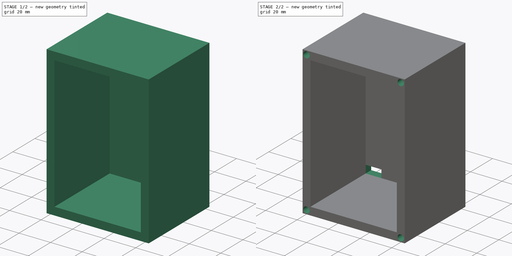
[diagram: build sequence overview — one tinted view per stage of 2, left to right]
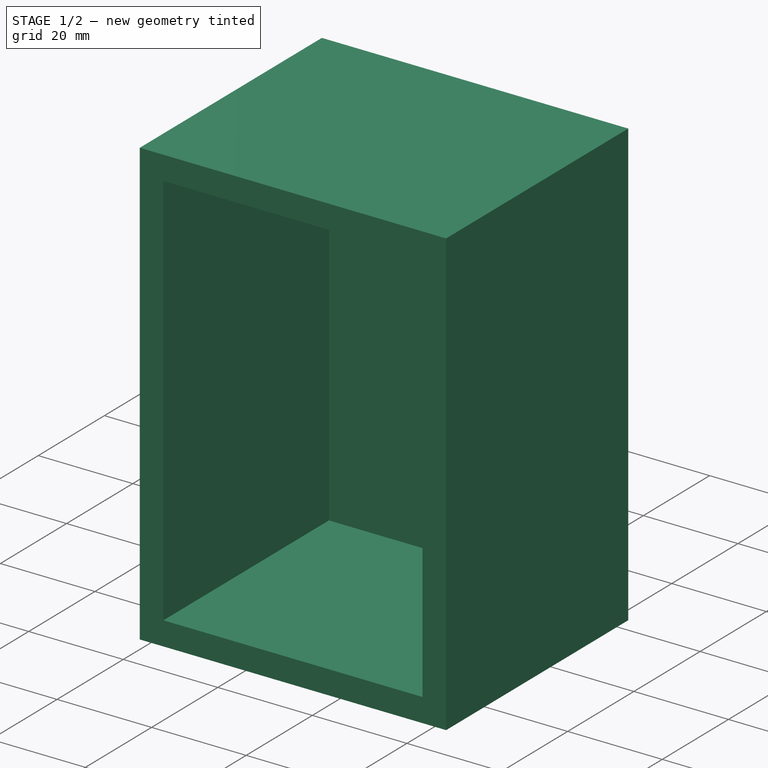
[diagram: stage 1 of 2 — iso view after this stage's code; geometry added in this stage tinted green]
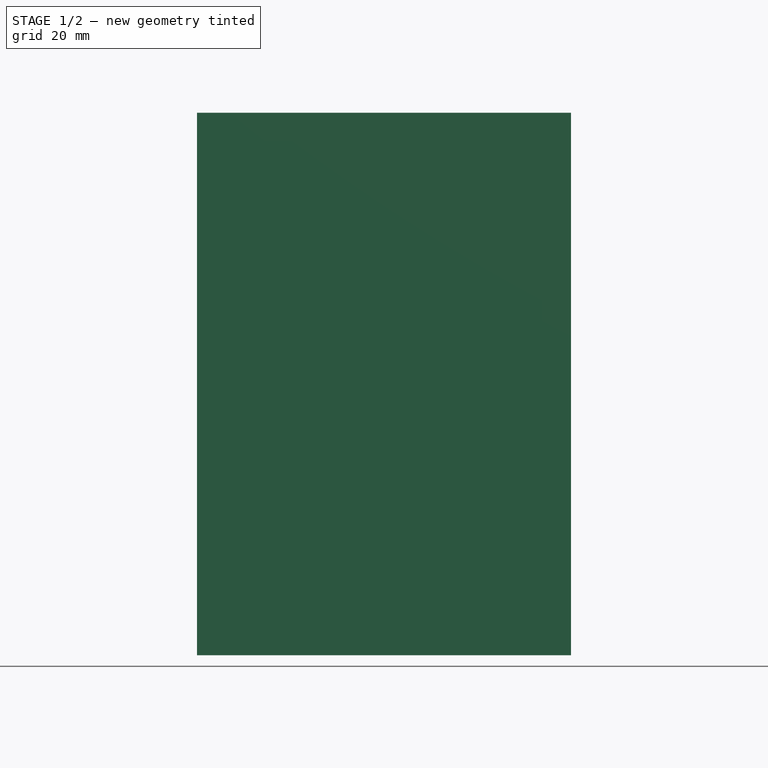
[diagram: stage 1 of 2 — front view after this stage's code; geometry added in this stage tinted green]
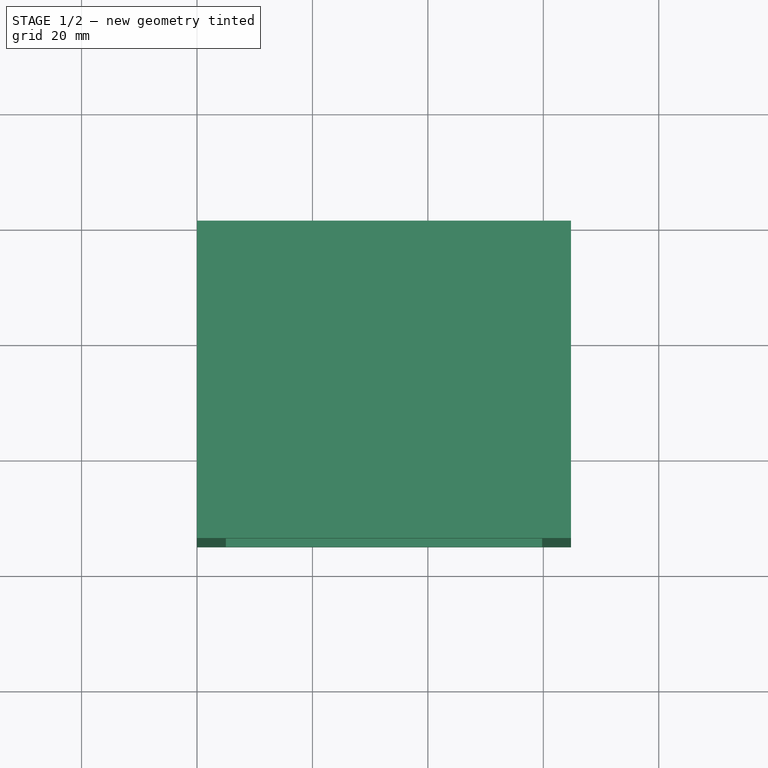
[diagram: stage 1 of 2 — top view after this stage's code; geometry added in this stage tinted green]
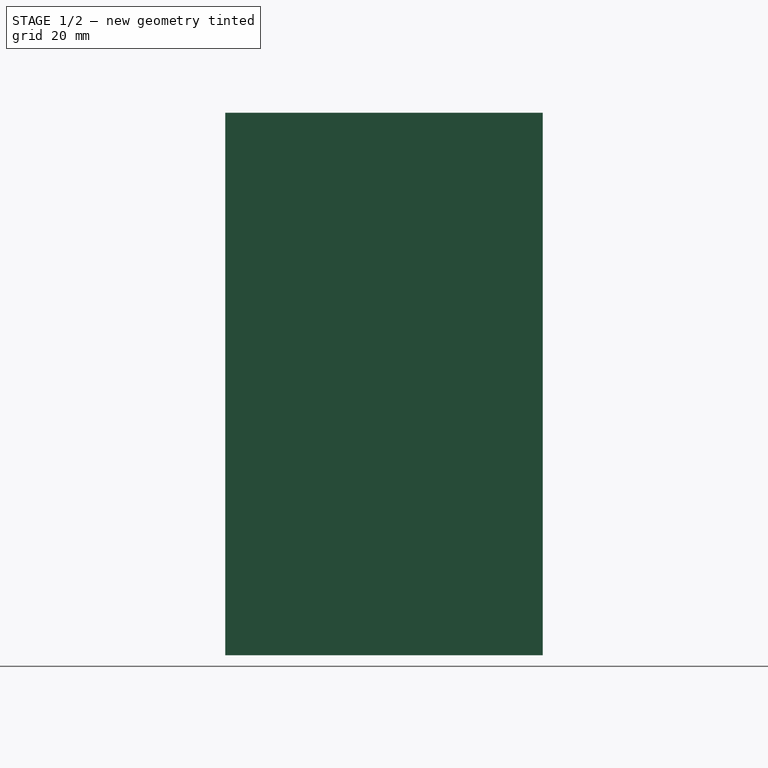
[diagram: stage 1 of 2 — right view after this stage's code; geometry added in this stage tinted green]
FCSTD DOCUMENT  (FreeCAD 0.20R29603 (Git))
Label: body
License: All rights reserved
LicenseURL: http://en.wikipedia.org/wiki/All_rights_reserved
objects: Sketcher::SketchObject×4, PartDesign::Pocket×3, PartDesign::Pad×1, PartDesign::Body×1
note: 13 computed .brp shape members not serialized (recipe doc carries the construction recipe); baked Part::Feature solids carry a one-line shape summary decoded from their .brp

FEATURE [Sketcher::SketchObject] Sketch
  FullyConstrained = true
  MapMode = 5
  Placement = pos=(0,0,0) rot=(1,0,0;1.5708rad)
  Support = -> [XZ_Plane]
  sketch-geometry (4):
    g0: LineSegment StartX=0 StartY=0 StartZ=0 EndX=64.8 EndY=0 EndZ=0
    g1: LineSegment StartX=64.8 StartY=0 StartZ=0 EndX=64.8 EndY=94 EndZ=0
    g2: LineSegment StartX=64.8 StartY=94 StartZ=0 EndX=0 EndY=94 EndZ=0
    g3: LineSegment StartX=0 StartY=94 StartZ=0 EndX=0 EndY=0 EndZ=0
  constraints (11):
    c: Coincident(g0,g1)
    c: Coincident(g1,g2)
    c: Coincident(g2,g3)
    c: Coincident(g3,g0)
    c: Horizontal(g0)
    c: Horizontal(g2)
    c: Vertical(g1)
    c: Vertical(g3)
    c: Coincident(g0,g-1)
    c: DistanceX(g2,g2) = 64.8
    c: DistanceY(g3,g3) = 94
FEATURE [PartDesign::Pad] Pad
  Direction = (0,-1,2e-16)
  Length = 55
  Length2 = 10
  Placement = pos=(0,0,0) rot=(1,0,0;1.5708rad)
  Profile = -> Sketch
  ReferenceAxis = -> Sketch [N_Axis]
  Type = 0
FEATURE [Sketcher::SketchObject] Sketch001
  ExternalGeometry = -> [Pad]
  FullyConstrained = true
  MapMode = 5
  Placement = pos=(0,-55,1.22e-14) rot=(1,0,0;1.5708rad)
  Support = -> [Pad]
  sketch-geometry (4):
    g0: LineSegment StartX=5 StartY=5 StartZ=0 EndX=59.8 EndY=5 EndZ=0
    g1: LineSegment StartX=59.8 StartY=5 StartZ=0 EndX=59.8 EndY=89 EndZ=0
    g2: LineSegment StartX=59.8 StartY=89 StartZ=0 EndX=5 EndY=89 EndZ=0
    g3: LineSegment StartX=5 StartY=89 StartZ=0 EndX=5 EndY=5 EndZ=0
  constraints (12):
    c: Coincident(g0,g1)
    c: Coincident(g1,g2)
    c: Coincident(g2,g3)
    c: Coincident(g3,g0)
    c: Horizontal(g0)
    c: Horizontal(g2)
    c: Vertical(g1)
    c: Vertical(g3)
    c: DistanceX(g-5,g2) = 5
    c: DistanceX(g1,g-4) = 5
    c: DistanceY(g2,g-5) = 5
    c: DistanceY(g-6,g0) = 5
FEATURE [PartDesign::Pocket] Pocket
  BaseFeature = -> Pad
  Direction = (0,1,-2e-16)
  Length = 50
  Length2 = 5
  Placement = pos=(0,0,0) rot=(1,0,0;1.5708rad)
  Profile = -> Sketch001
  ReferenceAxis = -> Sketch001 [N_Axis]
  Type = 0
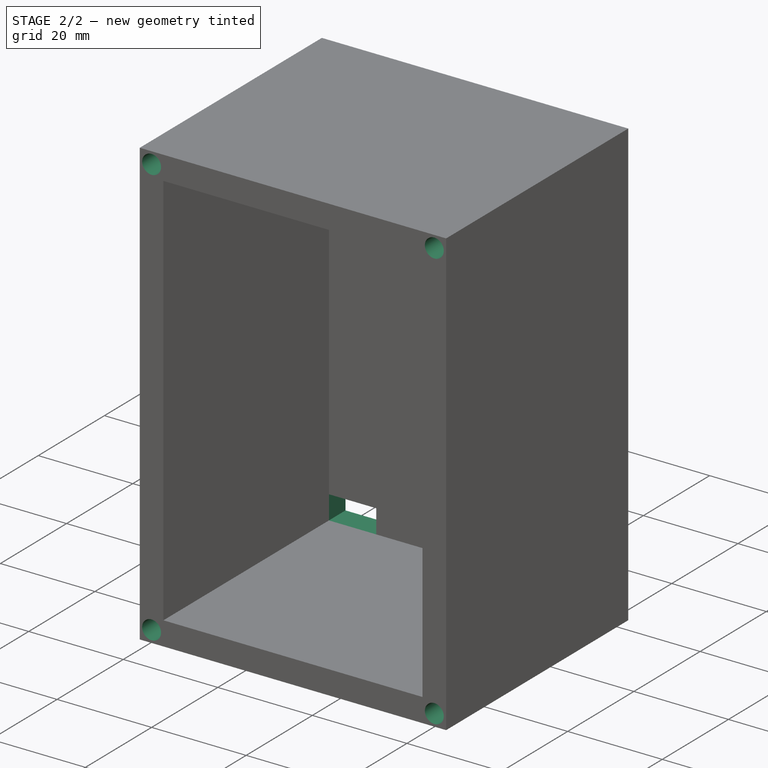
[diagram: stage 2 of 2 — iso view after this stage's code; geometry added in this stage tinted green]
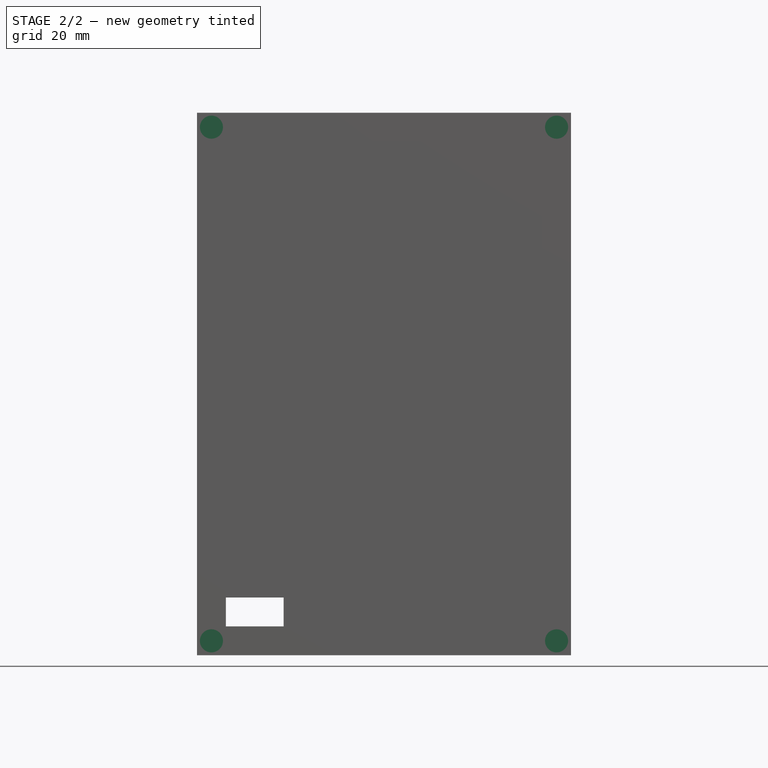
[diagram: stage 2 of 2 — front view after this stage's code; geometry added in this stage tinted green]
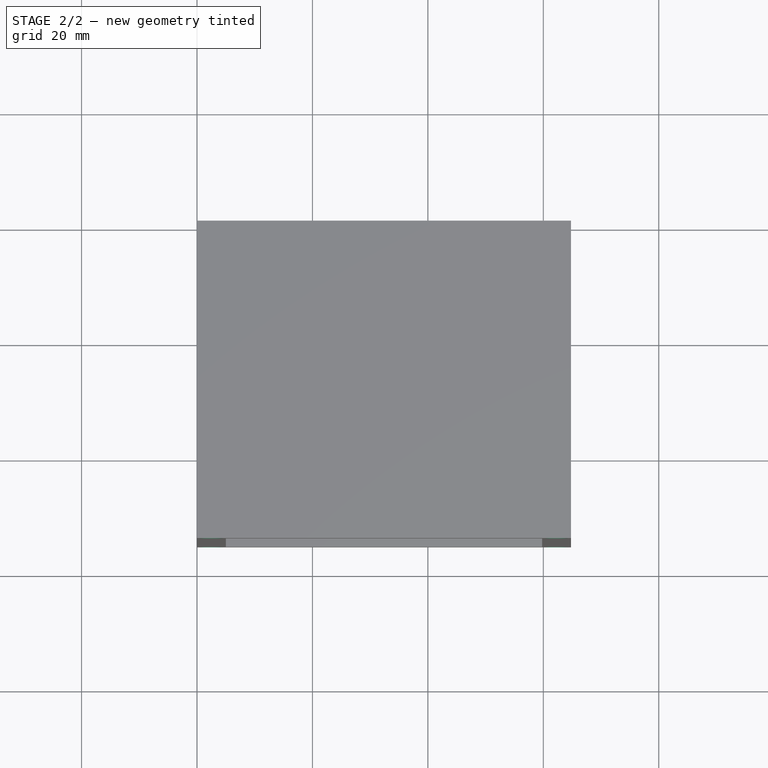
[diagram: stage 2 of 2 — top view after this stage's code; geometry added in this stage tinted green]
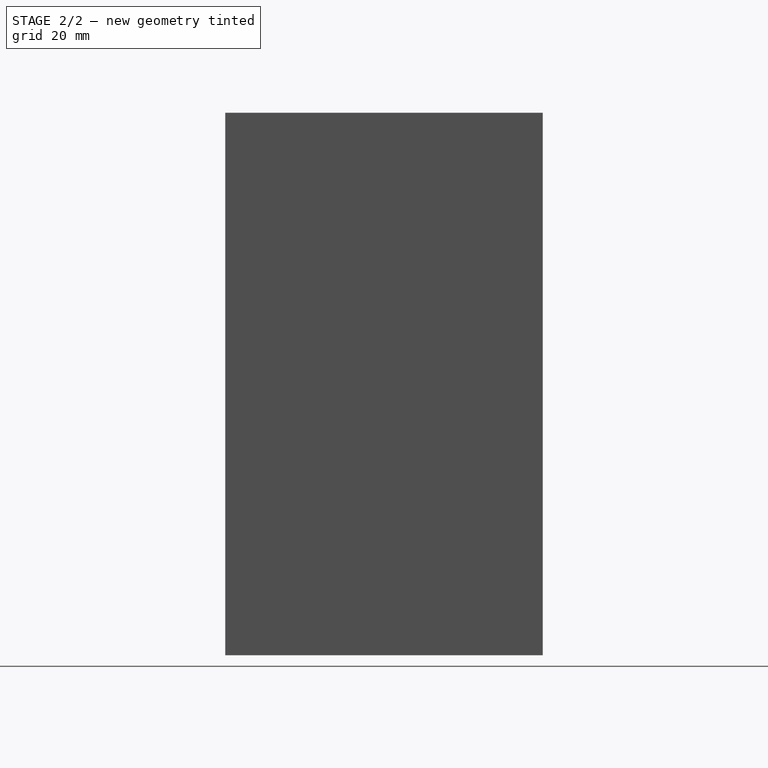
[diagram: stage 2 of 2 — right view after this stage's code; geometry added in this stage tinted green]
FEATURE [Sketcher::SketchObject] Sketch002
  ExternalGeometry = -> [Pocket]
  FullyConstrained = true
  MapMode = 5
  Placement = pos=(0,-55,1.22e-14) rot=(1,0,0;1.5708rad)
  Support = -> [Pocket]
  sketch-geometry (12):
    g0: Circle CenterX=2.5 CenterY=2.5 CenterZ=0 NormalX=0 NormalY=0 NormalZ=1 AngleXU=0 Radius=2
    g1: Circle CenterX=62.3 CenterY=2.5 CenterZ=0 NormalX=0 NormalY=0 NormalZ=1 AngleXU=0 Radius=2
    g2: Circle CenterX=62.3 CenterY=91.5 CenterZ=0 NormalX=0 NormalY=0 NormalZ=1 AngleXU=0 Radius=2
    g3: Circle CenterX=2.5 CenterY=91.5 CenterZ=0 NormalX=0 NormalY=0 NormalZ=1 AngleXU=0 Radius=2
    g4: LineSegment StartX=2.5 StartY=91.5 StartZ=0 EndX=0 EndY=94 EndZ=0
    g5: LineSegment StartX=2.5 StartY=91.5 StartZ=0 EndX=5 EndY=89 EndZ=0
    g6: LineSegment StartX=64.8 StartY=94 StartZ=0 EndX=62.3 EndY=91.5 EndZ=0
    g7: LineSegment StartX=62.3 StartY=91.5 StartZ=0 EndX=59.8 EndY=89 EndZ=0
    g8: LineSegment StartX=2.5 StartY=2.5 StartZ=0 EndX=5 EndY=5 EndZ=0
    g9: LineSegment StartX=2.5 StartY=2.5 StartZ=0 EndX=0 EndY=0 EndZ=0
    g10: LineSegment StartX=62.3 StartY=2.5 StartZ=0 EndX=59.8 EndY=5 EndZ=0
    g11: LineSegment StartX=62.3 StartY=2.5 StartZ=0 EndX=64.8 EndY=0 EndZ=0
  constraints (28):
    c: Coincident(g4,g3)
    c: Coincident(g4,g-7)
    c: Coincident(g5,g3)
    c: Coincident(g5,g-8)
    c: Equal(g5,g4)
    c: Parallel(g4,g5)
    c: Coincident(g6,g-10)
    c: Coincident(g6,g2)
    c: Coincident(g7,g2)
    c: Coincident(g7,g-9)
    c: Equal(g6,g7)
    c: Parallel(g6,g7)
    c: Coincident(g8,g0)
    c: Coincident(g8,g-6)
    c: Coincident(g9,g0)
    c: Coincident(g9,g-5)
    c: Equal(g9,g8)
    c: Parallel(g8,g9)
    c: Coincident(g10,g1)
    c: Coincident(g10,g-9)
    c: Coincident(g11,g1)
    c: Coincident(g11,g-10)
    c: Equal(g10,g11)
    c: Parallel(g10,g11)
    c: Equal(g3,g2)
    c: Equal(g2,g1)
    c: Equal(g1,g0)
    c: Diameter(g2) = 4
FEATURE [PartDesign::Pocket] Pocket001
  BaseFeature = -> Pocket
  Direction = (0,1,-2e-16)
  Length = 5
  Length2 = 5
  Placement = pos=(0,0,0) rot=(1,0,0;1.5708rad)
  Profile = -> Sketch002
  ReferenceAxis = -> Sketch002 [N_Axis]
  Type = 0
FEATURE [Sketcher::SketchObject] Sketch003
  ExternalGeometry = -> [Pocket001]
  FullyConstrained = true
  MapMode = 5
  Placement = pos=(0,-5,1.3e-15) rot=(1,0,0;1.5708rad)
  Support = -> [Pocket001]
  sketch-geometry (4):
    g0: LineSegment StartX=5 StartY=5 StartZ=0 EndX=15 EndY=5 EndZ=0
    g1: LineSegment StartX=15 StartY=5 StartZ=0 EndX=15 EndY=10 EndZ=0
    g2: LineSegment StartX=15 StartY=10 StartZ=0 EndX=5 EndY=10 EndZ=0
    g3: LineSegment StartX=5 StartY=10 StartZ=0 EndX=5 EndY=5 EndZ=0
  constraints (11):
    c: Coincident(g0,g1)
    c: Coincident(g1,g2)
    c: Coincident(g2,g3)
    c: Coincident(g3,g0)
    c: Horizontal(g0)
    c: Horizontal(g2)
    c: Vertical(g1)
    c: Vertical(g3)
    c: Coincident(g0,g-4)
    c: DistanceX(g2,g2) = 10
    c: DistanceY(g1,g1) = 5
FEATURE [PartDesign::Pocket] Pocket002
  BaseFeature = -> Pocket001
  Direction = (0,1,-2e-16)
  Length = 5
  Length2 = 5
  Placement = pos=(0,0,0) rot=(1,0,0;1.5708rad)
  Profile = -> Sketch003
  ReferenceAxis = -> Sketch003 [N_Axis]
  Type = 1
FEATURE [PartDesign::Body] Body
  Group = -> [Sketch,Pad,Sketch001,Pocket,Sketch002,Pocket001,Sketch003,Pocket002]
  Origin = -> Origin
  Tip = -> Pocket002
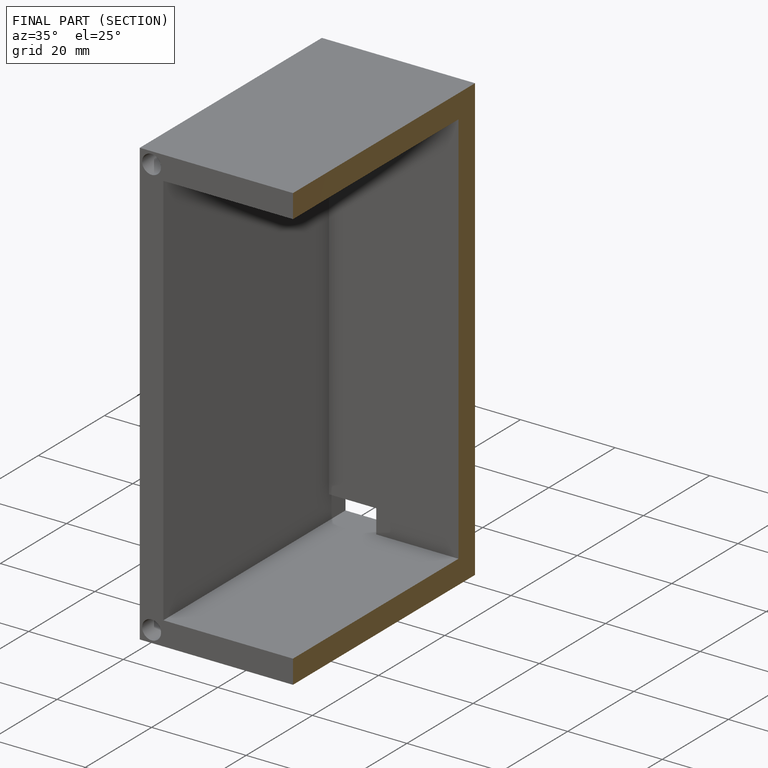
[diagram: finished part — half-section view (interior)]
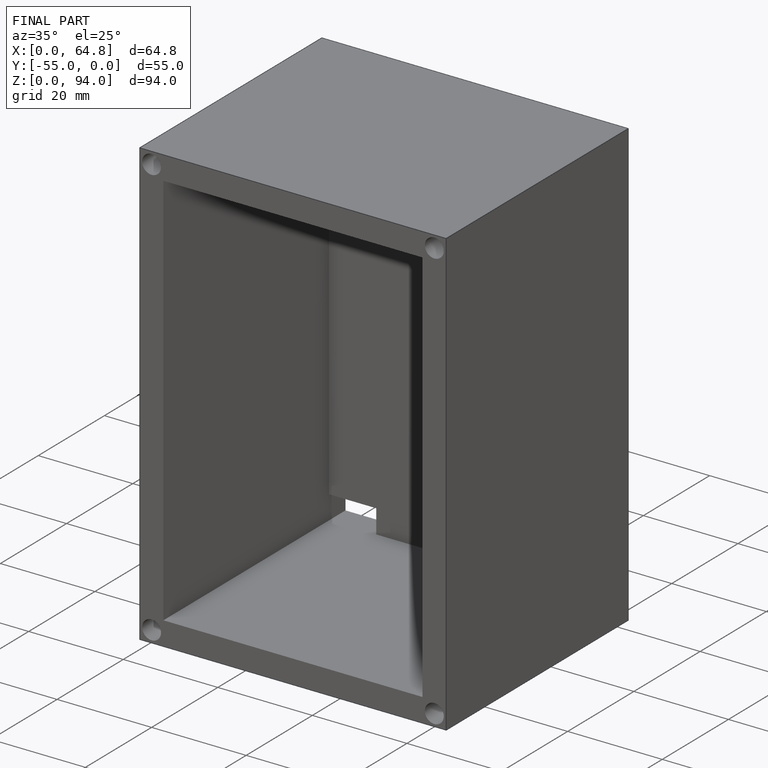
[diagram: finished part — iso view with bounding-box wireframe]
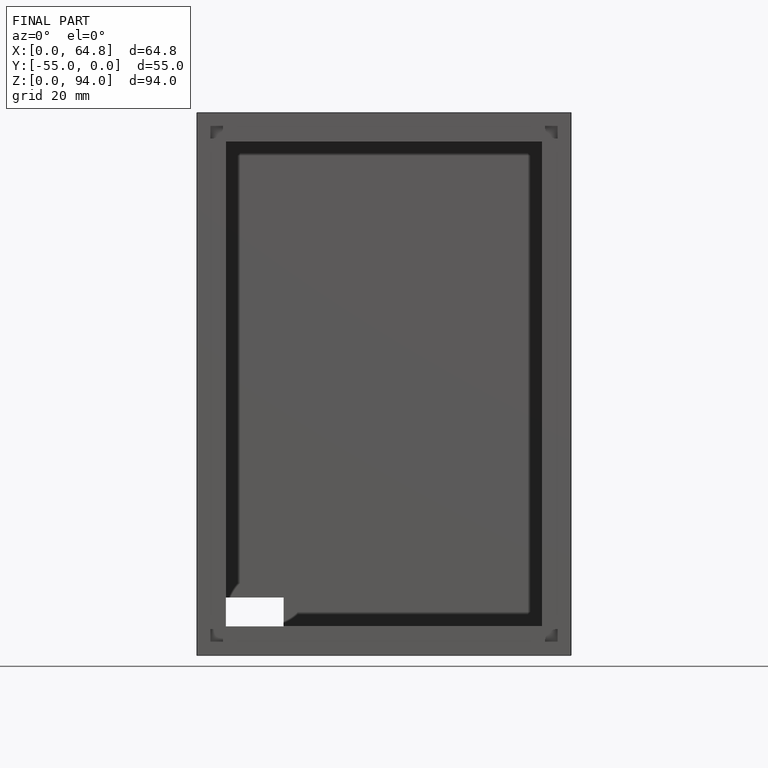
[diagram: finished part — front view with bounding-box wireframe]
